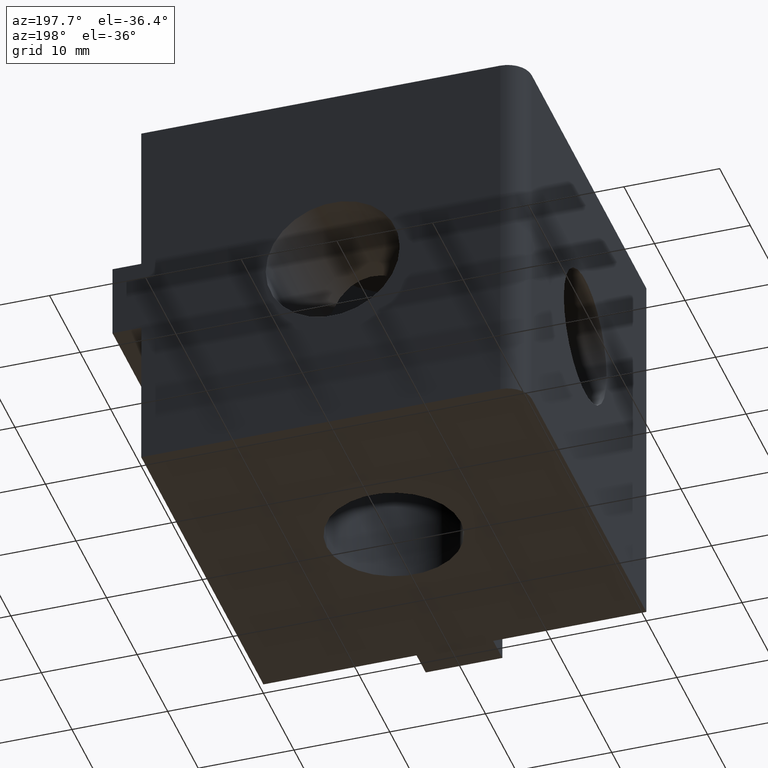
[diagram: clean part render]
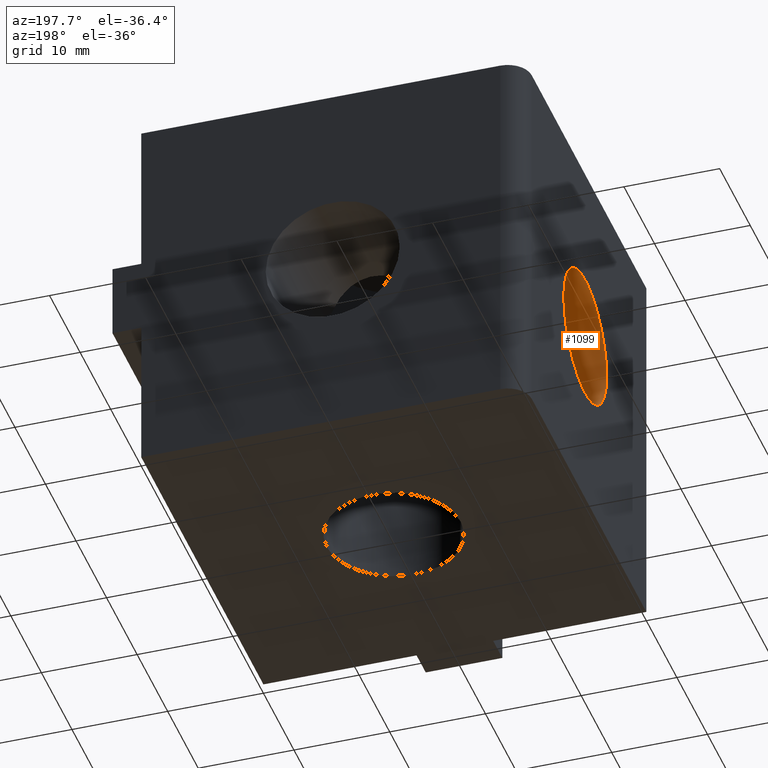
[diagram: same view with one face highlighted and labeled with its STEP entity id]
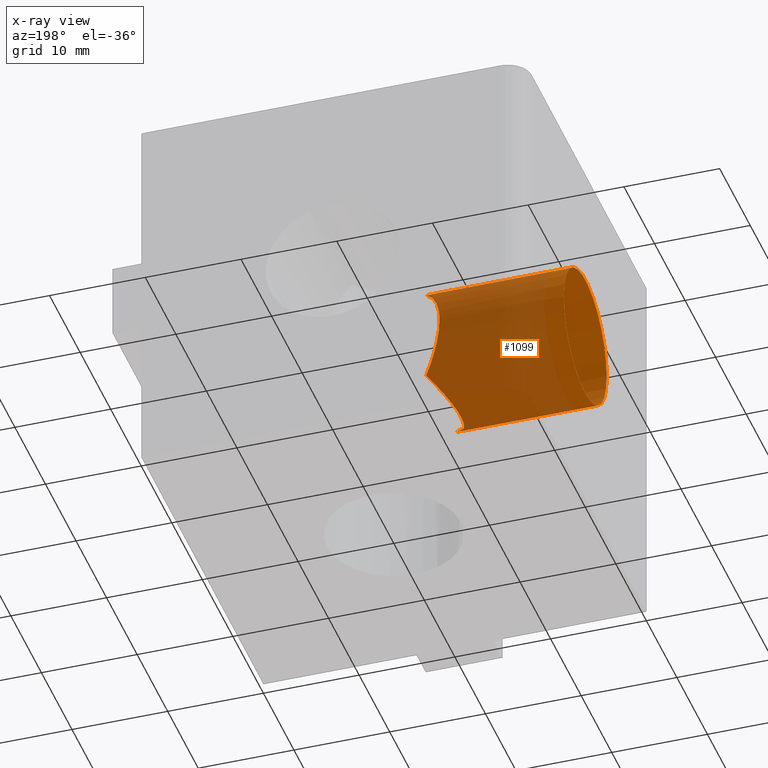
[diagram: x-ray of the same camera — body ghosted, the highlighted face saturated]
A machine part, auxiliary view. The second image highlights one B-rep face of the part: STEP entity #1099.
The next image is the same camera in x-ray: the body ghosted, the highlighted face saturated — about 71% of this face is hidden behind the body in this view.
In plain terms, the highlighted cylindrical surface (bore or boss wall) has radius 7 mm, axis along (-1, 0, 0).
Its self-contained STEP definition (entity closure, byte-faithful):
#503=CARTESIAN_POINT('',(-19.999995559920137,6.999996535972421,19.999995559920002));
#504=VERTEX_POINT('',#503);
#505=CARTESIAN_POINT('',(-19.999995559920137,-6.999996535972485,19.999995559920002));
#506=VERTEX_POINT('',#505);
#507=CARTESIAN_POINT('',(-19.999995559920137,-2.842171E-014,19.999995559920002));
#508=DIRECTION('',(-1.0,0.0,0.0));
#509=DIRECTION('',(0.0,-1.0,0.0));
#510=AXIS2_PLACEMENT_3D('',#507,#508,#509);
#511=CIRCLE('',#510,6.999996535972450);
#512=EDGE_CURVE('',#504,#506,#511,.T.);
#514=CARTESIAN_POINT('',(-19.999995559920137,-2.842171E-014,19.999995559920002));
#515=DIRECTION('',(-1.0,0.0,0.0));
#516=DIRECTION('',(0.0,-1.0,0.0));
#517=AXIS2_PLACEMENT_3D('',#514,#515,#516);
#518=CIRCLE('',#517,6.999996535972450);
#519=EDGE_CURVE('',#506,#504,#518,.T.);
#759=CARTESIAN_POINT('',(-6.999996535972457,-6.999996535972485,19.999995559920080));
#760=VERTEX_POINT('',#759);
#767=CARTESIAN_POINT('',(-4.949745018868470,-4.949745018868441,24.949740578788507));
#768=VERTEX_POINT('',#767);
#769=CARTESIAN_POINT('',(-6.999996535972457,-6.999996535972485,19.999995559920041));
#770=CARTESIAN_POINT('',(-6.999996535972457,-6.999996535972485,20.358045561525113));
#771=CARTESIAN_POINT('',(-6.936435114277572,-6.936435114896824,21.178464312150432));
#772=CARTESIAN_POINT('',(-6.619023660546986,-6.619023657670795,22.405528958580032));
#773=CARTESIAN_POINT('',(-6.053792332299906,-6.053792343384203,23.592288172859281));
#774=CARTESIAN_POINT('',(-5.459223393374236,-5.459223361560783,24.411242401168742));
#775=CARTESIAN_POINT('',(-5.069594504802174,-5.069594533267111,24.829903485438653));
#776=CARTESIAN_POINT('',(-4.949748911129372,-4.949748946664379,24.949748398889454));
#777=B_SPLINE_CURVE_WITH_KNOTS('',3,(#769,#770,#771,#772,#773,#774,#775,#776),.UNSPECIFIED.,.F.,.U.,(4,1,1,1,1,4),(0.0,1.076210521592833,2.457966925929245,3.888967927551317,5.341226789376576,5.963964913711275),.UNSPECIFIED.);
#778=EDGE_CURVE('',#760,#768,#777,.T.);
#824=CARTESIAN_POINT('',(-4.949745018868413,-4.949745018868526,15.050250541051557));
#825=VERTEX_POINT('',#824);
#842=CARTESIAN_POINT('',(-4.949748911129289,-4.949748946664455,15.050242720950624));
#843=CARTESIAN_POINT('',(-5.069594504802101,-5.069594533267176,15.170087634401412));
#844=CARTESIAN_POINT('',(-5.459223393374219,-5.459223361560827,15.588748718671297));
#845=CARTESIAN_POINT('',(-6.053792332299821,-6.053792343384203,16.407702946980727));
#846=CARTESIAN_POINT('',(-6.619023660546958,-6.619023657670823,17.594462161259990));
#847=CARTESIAN_POINT('',(-6.936435114277572,-6.936435114896824,18.821526807689612));
#848=CARTESIAN_POINT('',(-6.999996535972457,-6.999996535972485,19.641945558314955));
#849=CARTESIAN_POINT('',(-6.999996535972457,-6.999996535972485,19.999995559920038));
#850=B_SPLINE_CURVE_WITH_KNOTS('',3,(#842,#843,#844,#845,#846,#847,#848,#849),.UNSPECIFIED.,.F.,.U.,(4,1,1,1,1,4),(3.084179840380720,3.706917964715356,5.159176826540569,6.590177828162668,7.971934232499121,9.048144754091991),.UNSPECIFIED.);
#851=EDGE_CURVE('',#825,#760,#850,.T.);
#864=CARTESIAN_POINT('',(-6.999996535972457,6.999996535972429,19.999995559920080));
#865=VERTEX_POINT('',#864);
#872=CARTESIAN_POINT('',(-4.949745018868441,4.949745018868498,15.050250541051591));
#873=VERTEX_POINT('',#872);
#874=CARTESIAN_POINT('',(-6.999996535972457,6.999996535972429,19.999995559920080));
#875=CARTESIAN_POINT('',(-6.999996535972457,6.999996535972429,19.641945558314998));
#876=CARTESIAN_POINT('',(-6.936435115194200,6.936435113856135,18.821526807923640));
#877=CARTESIAN_POINT('',(-6.619023656289443,6.619023662504759,17.594462160173329));
#878=CARTESIAN_POINT('',(-6.053792348707674,6.053792324754710,16.407702951168996));
#879=CARTESIAN_POINT('',(-5.459223345664589,5.459223414412570,15.588748705800601));
#880=CARTESIAN_POINT('',(-5.069594545570993,5.069594484059007,15.170087643688037));
#881=CARTESIAN_POINT('',(-4.949748961629254,4.949748884839029,15.050242732275969));
#882=B_SPLINE_CURVE_WITH_KNOTS('',3,(#874,#875,#876,#877,#878,#879,#880,#881),.UNSPECIFIED.,.F.,.U.,(4,1,1,1,1,4),(0.0,1.076210521592856,2.457966925929246,3.888967927551320,5.341226789376540,5.963964917351099),.UNSPECIFIED.);
#883=EDGE_CURVE('',#865,#873,#882,.T.);
#919=CARTESIAN_POINT('',(-4.949745018868526,4.949745018868413,24.949740578788489));
#920=VERTEX_POINT('',#919);
#936=CARTESIAN_POINT('',(-4.949748961629322,4.949748884838956,24.949748387564142));
#937=CARTESIAN_POINT('',(-5.069594545571048,5.069594484058912,24.829903476152090));
#938=CARTESIAN_POINT('',(-5.459223345664665,5.459223414412469,24.411242414039535));
#939=CARTESIAN_POINT('',(-6.053792348707646,6.053792324754625,23.592288168671164));
#940=CARTESIAN_POINT('',(-6.619023656289471,6.619023662504759,22.405528959666832));
#941=CARTESIAN_POINT('',(-6.936435115194172,6.936435113856078,21.178464311916514));
#942=CARTESIAN_POINT('',(-6.999996535972457,6.999996535972429,20.358045561525159));
#943=CARTESIAN_POINT('',(-6.999996535972457,6.999996535972429,19.999995559920080));
#944=B_SPLINE_CURVE_WITH_KNOTS('',3,(#936,#937,#938,#939,#940,#941,#942,#943),.UNSPECIFIED.,.F.,.U.,(4,1,1,1,1,4),(3.084190755651510,3.706928883625954,5.159187745451233,6.590188747073309,7.971945151409697,9.048155673002547),.UNSPECIFIED.);
#945=EDGE_CURVE('',#920,#865,#944,.T.);
#1049=CARTESIAN_POINT('',(-19.999995559920137,-2.842171E-014,19.999995559920002));
#1050=DIRECTION('',(-1.0,0.0,0.0));
#1051=DIRECTION('',(0.0,-1.0,0.0));
#1052=AXIS2_PLACEMENT_3D('',#1049,#1050,#1051);
#1053=CYLINDRICAL_SURFACE('',#1052,6.999996535972450);
#1054=CARTESIAN_POINT('',(-19.999995559920137,-6.999996535972485,19.999995559920002));
#1055=DIRECTION('',(1.0,0.0,0.0));
#1056=VECTOR('',#1055,12.999999023947680);
#1057=LINE('',#1054,#1056);
#1058=EDGE_CURVE('',#506,#760,#1057,.T.);
#1059=ORIENTED_EDGE('',*,*,#1058,.T.);
#1060=ORIENTED_EDGE('',*,*,#851,.F.);
#1061=CARTESIAN_POINT('',(-4.949774784915604,-4.949730138885059,15.050235661157569));
#1062=CARTESIAN_POINT('',(-5.116666730075679,-4.782838193724984,14.883345722829738));
#1063=CARTESIAN_POINT('',(-5.637314498994158,-4.207737354405424,14.362662914388030));
#1064=CARTESIAN_POINT('',(-6.294906778434211,-3.183951902292961,13.705092951346398));
#1065=CARTESIAN_POINT('',(-6.789163131303980,-1.850297129738607,13.210831575668678));
#1066=CARTESIAN_POINT('',(-7.018808230146931,-0.565650854281841,12.981187509289200));
#1067=CARTESIAN_POINT('',(-7.001872649997580,0.789010139390939,12.998123175727164));
#1068=CARTESIAN_POINT('',(-6.702891036387314,2.175252051098056,13.297103234140922));
#1069=CARTESIAN_POINT('',(-6.148967212663905,3.436783528140808,13.851033734054781));
#1070=CARTESIAN_POINT('',(-5.519036813786471,4.341751584087149,14.480943162359289));
#1071=CARTESIAN_POINT('',(-5.096285547601781,4.803219326002534,14.903726604091389));
#1072=CARTESIAN_POINT('',(-4.949774684564659,4.949730189039656,15.050235711311604));
#1073=B_SPLINE_CURVE_WITH_KNOTS('',3,(#1061,#1062,#1063,#1064,#1065,#1066,#1067,#1068,#1069,#1070,#1071,#1072),.UNSPECIFIED.,.F.,.U.,(4,1,1,1,1,1,1,1,1,4),(0.0,0.867551903871500,2.799539764328164,4.112344409745303,5.355215273814010,6.745680668278154,8.136329228710837,9.664422868294592,11.166273206564945,11.927796857464127),.UNSPECIFIED.);
#1074=EDGE_CURVE('',#825,#873,#1073,.T.);
#1075=ORIENTED_EDGE('',*,*,#1074,.T.);
#1076=ORIENTED_EDGE('',*,*,#883,.F.);
#1077=ORIENTED_EDGE('',*,*,#945,.F.);
#1078=CARTESIAN_POINT('',(-4.949774684564744,4.949730189039542,24.949755408528482));
#1079=CARTESIAN_POINT('',(-5.096285547601866,4.803219326002420,25.096264515748700));
#1080=CARTESIAN_POINT('',(-5.519036813786471,4.341751584087120,25.519047957480776));
#1081=CARTESIAN_POINT('',(-6.148967212663877,3.436783528140808,26.148957385785145));
#1082=CARTESIAN_POINT('',(-6.702891036387172,2.175252051098369,26.702887885698971));
#1083=CARTESIAN_POINT('',(-7.001872649997551,0.789010139391365,27.001867944112796));
#1084=CARTESIAN_POINT('',(-7.018808230146959,-0.565650854281500,27.018803610550840));
#1085=CARTESIAN_POINT('',(-6.789163131304122,-1.850297129738294,26.789159544171412));
#1086=CARTESIAN_POINT('',(-6.294906778434353,-3.183951902292762,26.294898168493734));
#1087=CARTESIAN_POINT('',(-5.637314498994243,-4.207737354405253,25.637328205452114));
#1088=CARTESIAN_POINT('',(-5.116666730075792,-4.782838193724899,25.116645397010362));
#1089=CARTESIAN_POINT('',(-4.949774784915690,-4.949730138885002,24.949755458682503));
#1090=B_SPLINE_CURVE_WITH_KNOTS('',3,(#1078,#1079,#1080,#1081,#1082,#1083,#1084,#1085,#1086,#1087,#1088,#1089),.UNSPECIFIED.,.F.,.U.,(4,1,1,1,1,1,1,1,1,4),(0.0,0.761523650899216,2.263373989169262,3.791467628752691,5.182116189185326,6.572581583649615,7.815452447718389,9.128257093135431,11.060244953592205,11.927796857463846),.UNSPECIFIED.);
#1091=EDGE_CURVE('',#920,#768,#1090,.T.);
#1092=ORIENTED_EDGE('',*,*,#1091,.T.);
#1093=ORIENTED_EDGE('',*,*,#778,.F.);
#1094=ORIENTED_EDGE('',*,*,#1058,.F.);
#1095=ORIENTED_EDGE('',*,*,#519,.T.);
#1096=ORIENTED_EDGE('',*,*,#512,.T.);
#1097=EDGE_LOOP('',(#1059,#1060,#1075,#1076,#1077,#1092,#1093,#1094,#1095,#1096));
#1098=FACE_OUTER_BOUND('',#1097,.T.);
#1099=ADVANCED_FACE('',(#1098),#1053,.F.);